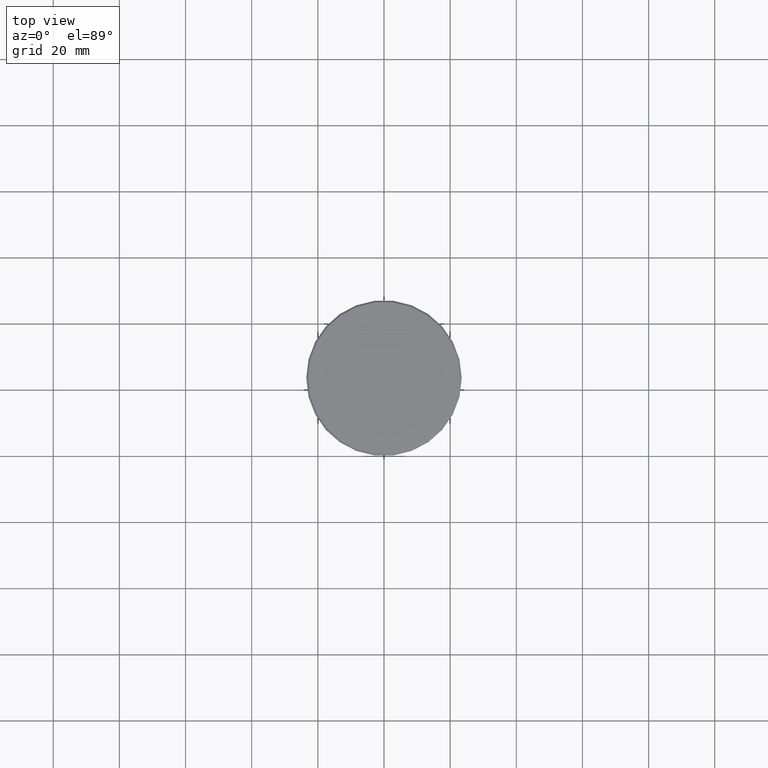
[diagram: clean part render]
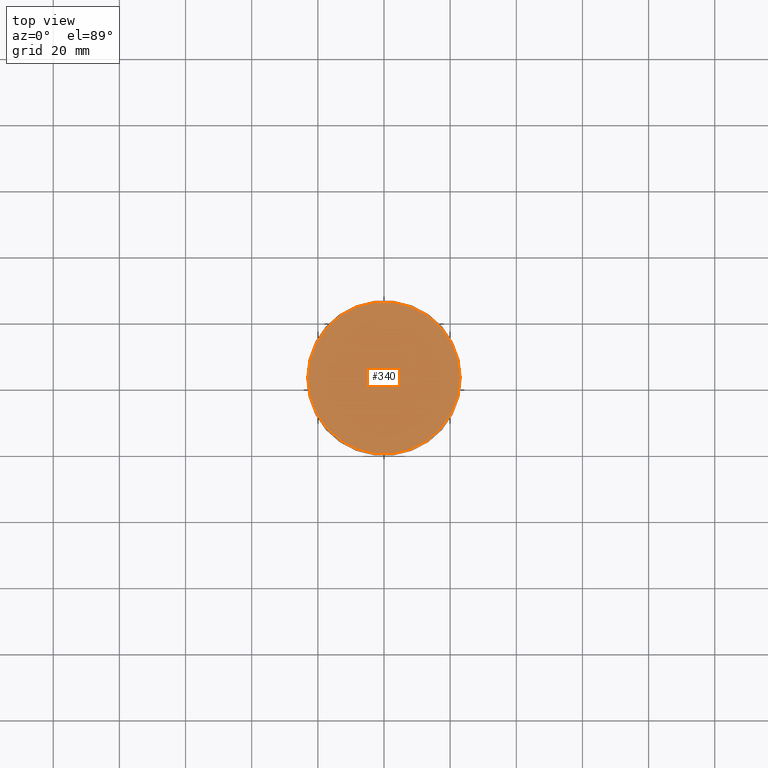
[diagram: same view with one face highlighted and labeled with its STEP entity id]
A machine part, top view. The second image highlights one B-rep face of the part: STEP entity #340.
In plain terms, the highlighted planar face has unit normal (0, -0, 1).
Its self-contained STEP definition (entity closure, byte-faithful):
#19 = DIRECTION ( 'NONE',  ( -0.000000000000000000, -0.000000000000000000, 1.000000000000000000 ) ) ;
#31 = DIRECTION ( 'NONE',  ( 1.000000000000000000, 0.000000000000000000, 0.000000000000000000 ) ) ;
#272 = DIRECTION ( 'NONE',  ( -0.000000000000000000, -0.000000000000000000, 1.000000000000000000 ) ) ;
#340 = ADVANCED_FACE ( 'NONE', ( #1029 ), #858, .T. ) ;
#417 = CIRCLE ( 'NONE', #1105, 23.00000000000002487 ) ;
#650 = CIRCLE ( 'NONE', #710, 23.00000000000002487 ) ;
#651 = CARTESIAN_POINT ( 'NONE',  ( 0.000000000000000000, 0.000000000000000000, 0.000000000000000000 ) ) ;
#684 = AXIS2_PLACEMENT_3D ( 'NONE', #774, #1110, #1033 ) ;
#710 = AXIS2_PLACEMENT_3D ( 'NONE', #651, #272, #837 ) ;
#738 = CARTESIAN_POINT ( 'NONE',  ( -23.00000000000002487, 0.000000000000000000, 0.000000000000000000 ) ) ;
#774 = CARTESIAN_POINT ( 'NONE',  ( 0.000000000000000000, 0.000000000000000000, 0.000000000000000000 ) ) ;
#817 = EDGE_LOOP ( 'NONE', ( #1021, #1065 ) ) ;
#835 = VERTEX_POINT ( 'NONE', #984 ) ;
#837 = DIRECTION ( 'NONE',  ( 1.000000000000000000, 0.000000000000000000, 0.000000000000000000 ) ) ;
#858 = PLANE ( 'NONE',  #684 ) ;
#951 = EDGE_CURVE ( 'NONE', #835, #1010, #417, .T. ) ;
#984 = CARTESIAN_POINT ( 'NONE',  ( 23.00000000000002487, 2.847303808017597717E-15, 0.000000000000000000 ) ) ;
#1010 = VERTEX_POINT ( 'NONE', #738 ) ;
#1021 = ORIENTED_EDGE ( 'NONE', *, *, #1143, .T. ) ;
#1029 = FACE_OUTER_BOUND ( 'NONE', #817, .T. ) ;
#1033 = DIRECTION ( 'NONE',  ( 1.000000000000000000, 0.000000000000000000, 0.000000000000000000 ) ) ;
#1065 = ORIENTED_EDGE ( 'NONE', *, *, #951, .T. ) ;
#1105 = AXIS2_PLACEMENT_3D ( 'NONE', #1120, #19, #31 ) ;
#1110 = DIRECTION ( 'NONE',  ( 0.000000000000000000, -0.000000000000000000, 1.000000000000000000 ) ) ;
#1120 = CARTESIAN_POINT ( 'NONE',  ( 0.000000000000000000, 0.000000000000000000, 0.000000000000000000 ) ) ;
#1143 = EDGE_CURVE ( 'NONE', #1010, #835, #650, .T. ) ;